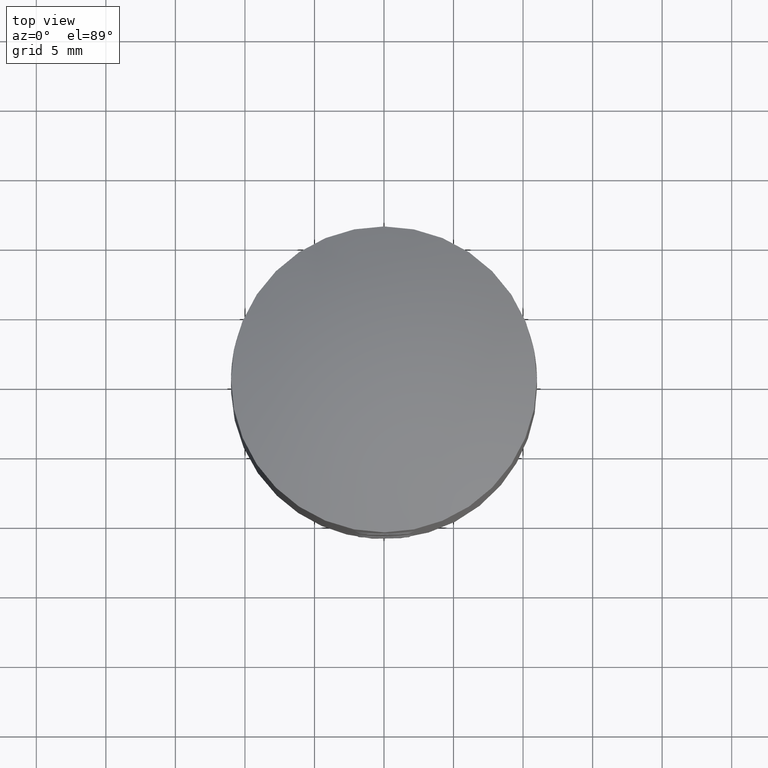
[diagram: clean part render]
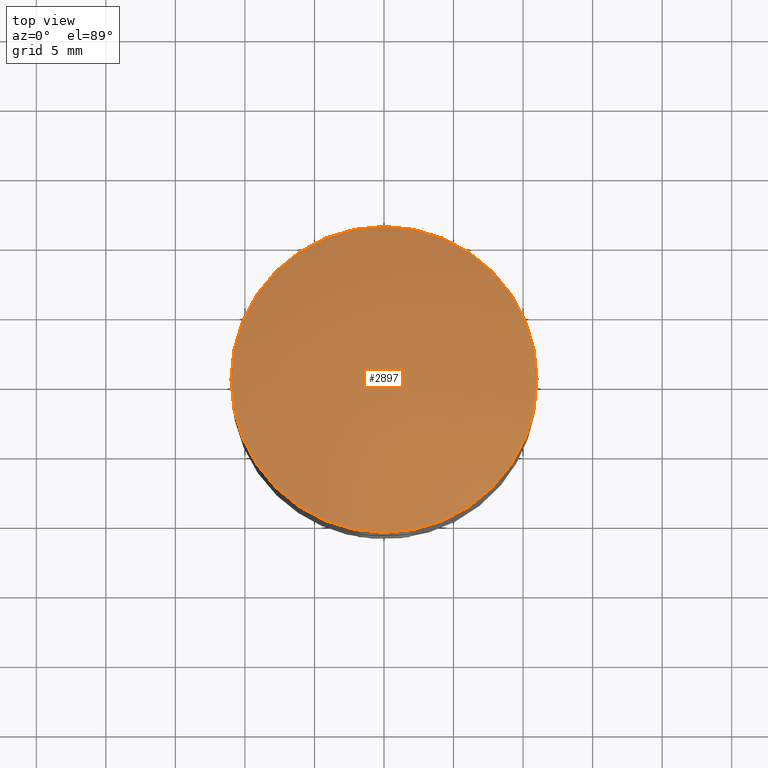
[diagram: same view with one face highlighted and labeled with its STEP entity id]
A machine part, top view. The second image highlights one B-rep face of the part: STEP entity #2897.
In plain terms, the highlighted spherical surface has radius 28 mm.
Its self-contained STEP definition (entity closure, byte-faithful):
#1186 = EDGE_CURVE ( 'NONE', #5651, #5651, #13024, .T. ) ;
#1456 = DIRECTION ( 'NONE',  ( 0.000000000000000000, -1.000000000000000000, 0.000000000000000000 ) ) ;
#2897 = ADVANCED_FACE ( 'NONE', ( #14582 ), #10356, .T. ) ;
#3507 = ORIENTED_EDGE ( 'NONE', *, *, #1186, .T. ) ;
#4251 = CARTESIAN_POINT ( 'NONE',  ( 0.000000000000000000, -2.434903461179736260E-17, 10.74878637916746804 ) ) ;
#5313 = CARTESIAN_POINT ( 'NONE',  ( 0.000000000000000000, 2.407412430484044816E-32, -15.00000000000000000 ) ) ;
#5651 = VERTEX_POINT ( 'NONE', #17389 ) ;
#6531 = DIRECTION ( 'NONE',  ( -1.000000000000000000, 0.000000000000000000, 0.000000000000000000 ) ) ;
#7088 = AXIS2_PLACEMENT_3D ( 'NONE', #5313, #6531, #16036 ) ;
#8432 = AXIS2_PLACEMENT_3D ( 'NONE', #4251, #13736, #1456 ) ;
#10356 = SPHERICAL_SURFACE ( 'NONE', #7088, 28.00000000000000000 ) ;
#11989 = EDGE_LOOP ( 'NONE', ( #3507 ) ) ;
#13024 = CIRCLE ( 'NONE', #8432, 10.99999999999999467 ) ;
#13736 = DIRECTION ( 'NONE',  ( -0.000000000000000000, 1.081595917263183534E-17, 1.000000000000000000 ) ) ;
#14582 = FACE_OUTER_BOUND ( 'NONE', #11989, .T. ) ;
#16036 = DIRECTION ( 'NONE',  ( 0.000000000000000000, 1.000000000000000000, 0.000000000000000000 ) ) ;
#17389 = CARTESIAN_POINT ( 'NONE',  ( 0.000000000000000000, -10.99999999999999467, 10.74878637916746804 ) ) ;